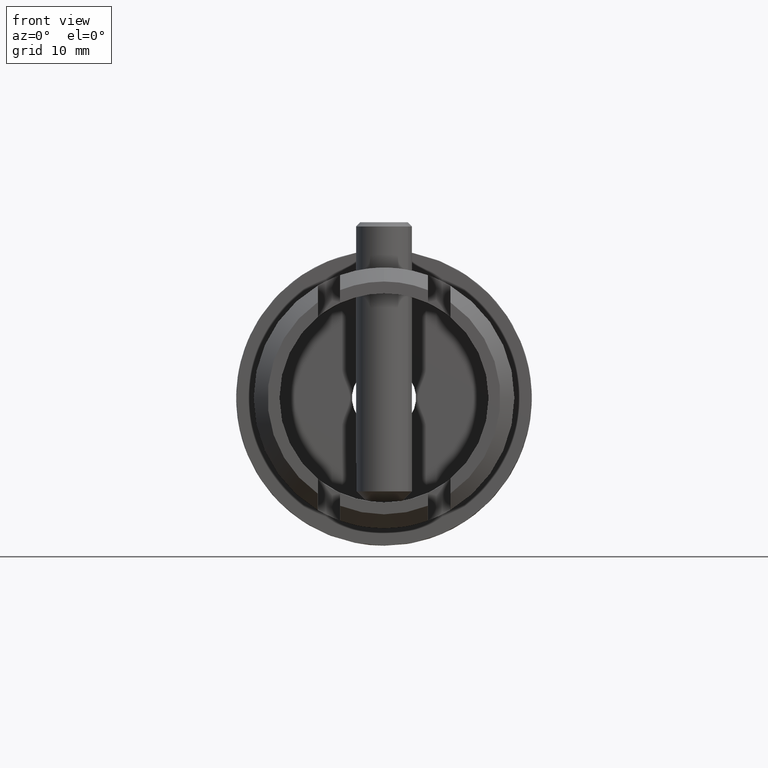
[diagram: clean part render]
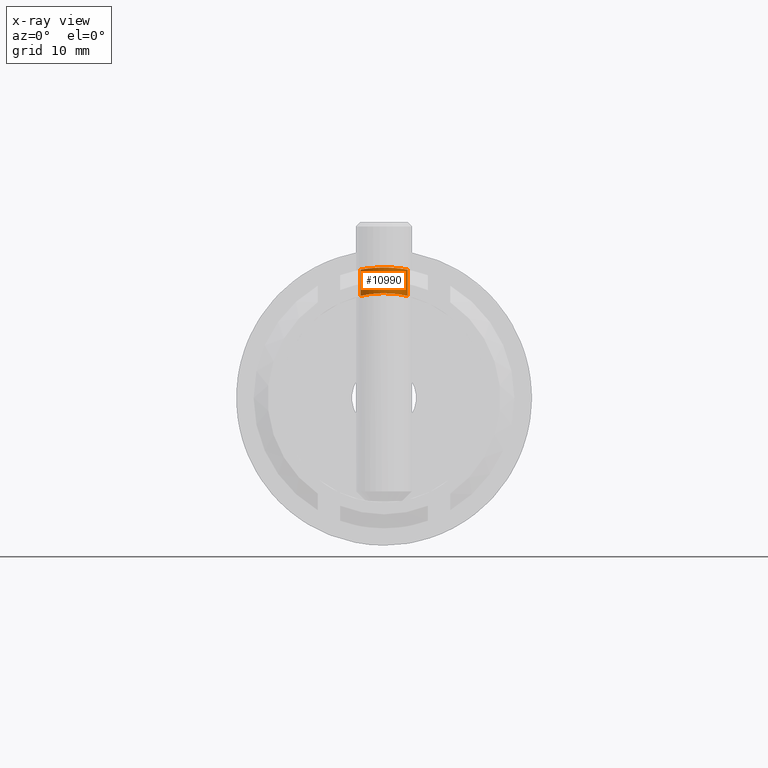
[diagram: x-ray — body ghosted, one internal face saturated and labeled with its STEP entity id]
A machine part, front view, then the same camera in x-ray: the body is ghosted and one INTERNAL B-rep face — a face not visible from any outside direction — is saturated and labeled: STEP entity #10990.
In plain terms, the highlighted cylindrical surface (edge-blend (fillet) strip) has radius 3.4 mm, axis along (0, 0, 1).
Its self-contained STEP definition (entity closure, byte-faithful):
#88 = CARTESIAN_POINT ( 'NONE',  ( 2.234251298812210700E-023, -28.39999999999999500, 18.69999999999999900 ) ) ;
#124 = LINE ( 'NONE', #4832, #12172 ) ;
#130 = DIRECTION ( 'NONE',  ( -0.0000000000000000000, -0.0000000000000000000, 1.000000000000000000 ) ) ;
#223 = CARTESIAN_POINT ( 'NONE',  ( 2.246609702168828700, -27.56158915542443600, 18.56522753668400600 ) ) ;
#572 = ORIENTED_EDGE ( 'NONE', *, *, #575, .T. ) ;
#575 = EDGE_CURVE ( 'NONE', #3870, #12874, #11403, .T. ) ;
#600 = CARTESIAN_POINT ( 'NONE',  ( -3.399999999999990600, -25.22209380509946200, 18.38831150486635100 ) ) ;
#694 = EDGE_CURVE ( 'NONE', #7785, #12874, #9469, .T. ) ;
#707 = CARTESIAN_POINT ( 'NONE',  ( -3.399999999999989300, -25.00000000000000000, 18.38831150486634400 ) ) ;
#747 = CARTESIAN_POINT ( 'NONE',  ( 3.053896593360992300, -26.51087650410948600, 14.68609160353892000 ) ) ;
#796 = CARTESIAN_POINT ( 'NONE',  ( -2.949194322714334200, -26.70636294232390600, 14.70775662162761300 ) ) ;
#892 = CARTESIAN_POINT ( 'NONE',  ( 3.399999999999995900, -25.22520626049743000, 18.38831150486634800 ) ) ;
#945 = CARTESIAN_POINT ( 'NONE',  ( -3.399999999999991000, -25.22230909879215600, 14.60958589419974300 ) ) ;
#995 = CARTESIAN_POINT ( 'NONE',  ( -0.8913987325942133200, -28.31144237963262400, 14.97923459957868400 ) ) ;
#1111 = FACE_OUTER_BOUND ( 'NONE', #10482, .T. ) ;
#1124 = CARTESIAN_POINT ( 'NONE',  ( 2.559767381424622900, -27.24868519541124800, 18.52464627451017900 ) ) ;
#1298 = CARTESIAN_POINT ( 'NONE',  ( 2.950026074378336200, -26.70489953008645000, 18.46626492979148500 ) ) ;
#1518 = B_SPLINE_CURVE_WITH_KNOTS ( 'NONE', 3,
 ( #11683, #892, #6439, #6626, #5562, #13008, #1298, #8756, #1124, #223, #10734, #9743, #6575, #4340, #3444, #2189, #5517, #88 ),
 .UNSPECIFIED., .F., .F.,
 ( 4, 2, 2, 2, 2, 2, 2, 2, 4 ),
 ( 0.0000000000000000000, 0.0006659186005795734200, 0.001331837201159146800, 0.001997755801738720000, 0.002663674402318293700, 0.003329593002897866500, 0.003995511603477440100, 0.004661430204057012000, 0.005327348804636584800 ),
 .UNSPECIFIED. ) ;
#1669 = ORIENTED_EDGE ( 'NONE', *, *, #7628, .F. ) ;
#1873 = CARTESIAN_POINT ( 'NONE',  ( -0.4487825625421024700, -28.39999999999999900, 15.00000000000000500 ) ) ;
#1881 = VERTEX_POINT ( 'NONE', #5932 ) ;
#1959 = CARTESIAN_POINT ( 'NONE',  ( -1.706243842146136800, -27.94918020979554300, 14.90379439204723200 ) ) ;
#2083 = ORIENTED_EDGE ( 'NONE', *, *, #10785, .F. ) ;
#2189 = CARTESIAN_POINT ( 'NONE',  ( 0.4433407674083805800, -28.37840120403013700, 18.69603564284734500 ) ) ;
#2794 = CARTESIAN_POINT ( 'NONE',  ( 1.835082352866933700E-015, -28.39999999999999500, 15.00000000000000000 ) ) ;
#2841 = CARTESIAN_POINT ( 'NONE',  ( 2.247170341244223200, -27.56104290734667800, 14.83156238862305400 ) ) ;
#2890 = CARTESIAN_POINT ( 'NONE',  ( 3.224066408539760800, -26.10201089238604400, 14.64967463064636100 ) ) ;
#2986 = CARTESIAN_POINT ( 'NONE',  ( -3.290492969021854300, -25.88501992688318900, 14.63470836243472200 ) ) ;
#3166 = ORIENTED_EDGE ( 'NONE', *, *, #10907, .F. ) ;
#3396 = DIRECTION ( 'NONE',  ( 1.000000000000000000, 0.0000000000000000000, 0.0000000000000000000 ) ) ;
#3444 = CARTESIAN_POINT ( 'NONE',  ( 0.8826087277692822300, -28.29107088424178000, 18.68045239356718700 ) ) ;
#3515 = ORIENTED_EDGE ( 'NONE', *, *, #5062, .F. ) ;
#3540 = CARTESIAN_POINT ( 'NONE',  ( -2.246663669688396600, -27.56174092022219200, 18.56523410317851500 ) ) ;
#3584 = CARTESIAN_POINT ( 'NONE',  ( 2.234251298812210700E-023, -28.39999999999999500, 18.69999999999999900 ) ) ;
#3634 = CARTESIAN_POINT ( 'NONE',  ( -3.399999999999989300, -25.00000000000000000, 18.38831150486634400 ) ) ;
#3823 = CARTESIAN_POINT ( 'NONE',  ( -3.290512782786049400, -25.88436231419051500, 18.40827233316149900 ) ) ;
#3870 = VERTEX_POINT ( 'NONE', #4294 ) ;
#3875 = CARTESIAN_POINT ( 'NONE',  ( 0.2242786566624708200, -28.39999999999999100, 14.99999999999999800 ) ) ;
#3918 = CARTESIAN_POINT ( 'NONE',  ( 2.700898609786770900, -27.07727200480687600, 14.75537748475212900 ) ) ;
#4065 = CARTESIAN_POINT ( 'NONE',  ( -2.248294393881501700, -27.56014005812497600, 14.83139830164949500 ) ) ;
#4294 = CARTESIAN_POINT ( 'NONE',  ( -3.399999999999989300, -25.00000000000000000, 14.60958589419974100 ) ) ;
#4340 = CARTESIAN_POINT ( 'NONE',  ( 1.097513814532561600, -28.22560125881400200, 18.66889163928880200 ) ) ;
#4817 = CARTESIAN_POINT ( 'NONE',  ( -3.055706637879097800, -26.50736983758309200, 18.44885160571217900 ) ) ;
#4832 = CARTESIAN_POINT ( 'NONE',  ( 3.399999999999995500, -25.00000000000000000, 18.69999999999999900 ) ) ;
#5004 = CARTESIAN_POINT ( 'NONE',  ( 1.703711668815423900, -27.95075445842253400, 14.90410012429169700 ) ) ;
#5049 = CARTESIAN_POINT ( 'NONE',  ( 3.399999999999995500, -25.00000000000000000, 14.60958589419973900 ) ) ;
#5062 = EDGE_CURVE ( 'NONE', #11028, #7739, #124, .T. ) ;
#5101 = CARTESIAN_POINT ( 'NONE',  ( 3.377819665974671500, -25.44754056291512600, 14.61479918256340200 ) ) ;
#5335 = CARTESIAN_POINT ( 'NONE',  ( 3.399999999999995500, -25.00000000000000000, 18.38831150486634400 ) ) ;
#5517 = CARTESIAN_POINT ( 'NONE',  ( 0.2223403154198302600, -28.40000000000000200, 18.70000000000000300 ) ) ;
#5562 = CARTESIAN_POINT ( 'NONE',  ( 3.225488122671489300, -26.09812971057562300, 18.41992786974511300 ) ) ;
#5574 = CARTESIAN_POINT ( 'NONE',  ( -0.8843027898812707600, -28.29051609123254700, 18.68035483839960900 ) ) ;
#5607 = CARTESIAN_POINT ( 'NONE',  ( 3.061616997868383000E-015, -25.00000000000000000, 18.69999999999999900 ) ) ;
#5695 = CARTESIAN_POINT ( 'NONE',  ( -1.096414316124457100, -28.22608689598732200, 18.66897268811997900 ) ) ;
#5787 = CARTESIAN_POINT ( 'NONE',  ( -3.377741451406547100, -25.44769829560629800, 18.39246659241134900 ) ) ;
#5932 = CARTESIAN_POINT ( 'NONE',  ( 1.835082352866933700E-015, -28.39999999999999500, 15.00000000000000000 ) ) ;
#5937 = DIRECTION ( 'NONE',  ( -0.0000000000000000000, -0.0000000000000000000, 1.000000000000000000 ) ) ;
#5985 = B_SPLINE_CURVE_WITH_KNOTS ( 'NONE', 3,
 ( #10227, #945, #7368, #2986, #10558, #6305, #796, #13649, #10474, #4065, #6165, #1959, #8259, #995, #1873, #9335 ),
 .UNSPECIFIED., .F., .F.,
 ( 4, 2, 2, 2, 2, 2, 2, 4 ),
 ( 0.01066463516937686000, 0.01133116440514671300, 0.01199769364091656500, 0.01266422287668641700, 0.01333075211245627000, 0.01399728134822612200, 0.01466381058399597400, 0.01599686905553567400 ),
 .UNSPECIFIED. ) ;
#6018 = CARTESIAN_POINT ( 'NONE',  ( 0.4453932086113841500, -28.37802434952460100, 14.99497448796897300 ) ) ;
#6164 = CARTESIAN_POINT ( 'NONE',  ( 3.399999999999995000, -25.22532161819481500, 14.60958589419974100 ) ) ;
#6165 = CARTESIAN_POINT ( 'NONE',  ( -2.073992863956448200, -27.70323612712042300, 14.85708278665559200 ) ) ;
#6305 = CARTESIAN_POINT ( 'NONE',  ( -3.055519231428141000, -26.50762360074900300, 14.68575319858795700 ) ) ;
#6439 = CARTESIAN_POINT ( 'NONE',  ( 3.377846372433158000, -25.44655203539941700, 18.39244669355167300 ) ) ;
#6530 = CARTESIAN_POINT ( 'NONE',  ( 2.234251298812210700E-023, -28.39999999999999500, 18.69999999999999900 ) ) ;
#6575 = CARTESIAN_POINT ( 'NONE',  ( 1.506648179811833400, -28.05598614463841800, 18.64033430158555400 ) ) ;
#6626 = CARTESIAN_POINT ( 'NONE',  ( 3.291134001867805900, -25.88186836763136600, 18.40816064881685000 ) ) ;
#6900 = CARTESIAN_POINT ( 'NONE',  ( -2.703091853478042600, -27.07418448558843900, 18.50402057726077500 ) ) ;
#7368 = CARTESIAN_POINT ( 'NONE',  ( -3.378410624143966400, -25.44378587723558700, 14.61466299602458600 ) ) ;
#7628 = EDGE_CURVE ( 'NONE', #3870, #1881, #5985, .T. ) ;
#7739 = VERTEX_POINT ( 'NONE', #5335 ) ;
#7785 = VERTEX_POINT ( 'NONE', #6530 ) ;
#7869 = CARTESIAN_POINT ( 'NONE',  ( -2.949095619675029300, -26.70639440769380700, 18.46641053691926600 ) ) ;
#8210 = CARTESIAN_POINT ( 'NONE',  ( 1.098344689986040100, -28.22536228056590700, 14.96115078431689900 ) ) ;
#8259 = CARTESIAN_POINT ( 'NONE',  ( -1.511244219321101500, -28.05388301889462000, 14.92511829541025900 ) ) ;
#8756 = CARTESIAN_POINT ( 'NONE',  ( 2.703141448930918200, -27.07421371952667500, 18.50401633710452000 ) ) ;
#8861 = CARTESIAN_POINT ( 'NONE',  ( -1.706813691980082000, -27.94884958951369200, 18.62286051628124600 ) ) ;
#9284 = CARTESIAN_POINT ( 'NONE',  ( 1.508582305042529800, -28.05507812139566300, 14.92536677197579700 ) ) ;
#9335 = CARTESIAN_POINT ( 'NONE',  ( 1.835082352866933700E-015, -28.39999999999999500, 15.00000000000000000 ) ) ;
#9469 = B_SPLINE_CURVE_WITH_KNOTS ( 'NONE', 3,
 ( #3584, #12056, #11971, #5574, #5695, #13070, #8861, #9940, #3540, #13208, #6900, #7869, #4817, #12287, #3823, #5787, #600, #3634 ),
 .UNSPECIFIED., .F., .F.,
 ( 4, 2, 2, 2, 2, 2, 2, 2, 4 ),
 ( 0.005327348804636584800, 0.005992942841392244300, 0.006658536878147904700, 0.007324130914903564200, 0.007989724951659223800, 0.008655318988414883300, 0.009320913025170542800, 0.009986507061926204100, 0.01065210109868186400 ),
 .UNSPECIFIED. ) ;
#9743 = CARTESIAN_POINT ( 'NONE',  ( 1.703911075184066900, -27.95070798575855900, 18.62314662836599400 ) ) ;
#9890 = VECTOR ( 'NONE', #10745, 1000.000000000000000 ) ;
#9934 = ORIENTED_EDGE ( 'NONE', *, *, #694, .F. ) ;
#9940 = CARTESIAN_POINT ( 'NONE',  ( -2.074496898086173300, -27.70284840502321400, 18.58549459680394700 ) ) ;
#10227 = CARTESIAN_POINT ( 'NONE',  ( -3.399999999999989300, -25.00000000000000000, 14.60958589419974100 ) ) ;
#10261 = CARTESIAN_POINT ( 'NONE',  ( 3.399999999999995500, -25.00000000000000000, 14.60958589419973900 ) ) ;
#10474 = CARTESIAN_POINT ( 'NONE',  ( -2.561697464854407100, -27.24651973001209600, 14.78049083631152700 ) ) ;
#10480 = CARTESIAN_POINT ( 'NONE',  ( -3.399999999999989300, -25.00000000000000000, 18.69999999999999900 ) ) ;
#10482 = EDGE_LOOP ( 'NONE', ( #1669, #572, #9934, #3166, #3515, #2083 ) ) ;
#10558 = CARTESIAN_POINT ( 'NONE',  ( -3.225390616807788800, -26.09817214687447200, 14.64938224473891800 ) ) ;
#10734 = CARTESIAN_POINT ( 'NONE',  ( 2.075646671385743800, -27.70216236834864500, 18.58538657626791800 ) ) ;
#10745 = DIRECTION ( 'NONE',  ( -0.0000000000000000000, -0.0000000000000000000, 1.000000000000000000 ) ) ;
#10785 = EDGE_CURVE ( 'NONE', #1881, #11028, #11724, .T. ) ;
#10907 = EDGE_CURVE ( 'NONE', #7739, #7785, #1518, .T. ) ;
#10990 = ADVANCED_FACE ( 'NONE', ( #1111 ), #13530, .F. ) ;
#11028 = VERTEX_POINT ( 'NONE', #10261 ) ;
#11232 = AXIS2_PLACEMENT_3D ( 'NONE', #5607, #130, #3396 ) ;
#11351 = CARTESIAN_POINT ( 'NONE',  ( 2.559421673786895100, -27.24901667659186400, 14.78087880086754200 ) ) ;
#11403 = LINE ( 'NONE', #10480, #9890 ) ;
#11447 = CARTESIAN_POINT ( 'NONE',  ( 3.290161044824932100, -25.88588856546189400, 14.63478257923969700 ) ) ;
#11498 = CARTESIAN_POINT ( 'NONE',  ( 2.074017518553841200, -27.70333805823284500, 14.85709545295113500 ) ) ;
#11683 = CARTESIAN_POINT ( 'NONE',  ( 3.399999999999995500, -25.00000000000000000, 18.38831150486634400 ) ) ;
#11724 = B_SPLINE_CURVE_WITH_KNOTS ( 'NONE', 3,
 ( #2794, #3875, #6018, #13551, #8210, #9284, #5004, #11498, #2841, #11351, #3918, #12493, #747, #2890, #11447, #5101, #6164, #5049 ),
 .UNSPECIFIED., .F., .F.,
 ( 4, 2, 2, 2, 2, 2, 2, 2, 4 ),
 ( 0.01599686905553567400, 0.01666306375248626300, 0.01732925844943685600, 0.01799545314638744500, 0.01866164784333803500, 0.01932784254028862400, 0.01999403723723921400, 0.02066023193418980600, 0.02132642663114039600 ),
 .UNSPECIFIED. ) ;
#11971 = CARTESIAN_POINT ( 'NONE',  ( -0.4480100168606494500, -28.37768775875520100, 18.69590691401474200 ) ) ;
#12056 = CARTESIAN_POINT ( 'NONE',  ( -0.2222319483868028000, -28.39999999999998800, 18.69999999999999900 ) ) ;
#12172 = VECTOR ( 'NONE', #5937, 1000.000000000000000 ) ;
#12287 = CARTESIAN_POINT ( 'NONE',  ( -3.226093559559934500, -26.09627880988350400, 18.41982054666475600 ) ) ;
#12493 = CARTESIAN_POINT ( 'NONE',  ( 2.949492969559797100, -26.70599047618085800, 14.70770237801933300 ) ) ;
#12874 = VERTEX_POINT ( 'NONE', #707 ) ;
#13008 = CARTESIAN_POINT ( 'NONE',  ( 3.054556235544557000, -26.50975120289392400, 18.44904340501164700 ) ) ;
#13070 = CARTESIAN_POINT ( 'NONE',  ( -1.508524019495091100, -28.05517860290854400, 18.64019905647413100 ) ) ;
#13208 = CARTESIAN_POINT ( 'NONE',  ( -2.562857659677111800, -27.24538967737738200, 18.52423211814068100 ) ) ;
#13530 = CYLINDRICAL_SURFACE ( 'NONE', #11232, 3.399999999999992400 ) ;
#13551 = CARTESIAN_POINT ( 'NONE',  ( 0.8814749512578616800, -28.29126503438467200, 14.97566816257032200 ) ) ;
#13649 = CARTESIAN_POINT ( 'NONE',  ( -2.701892754966577700, -27.07586058894278500, 14.75518985085655800 ) ) ;